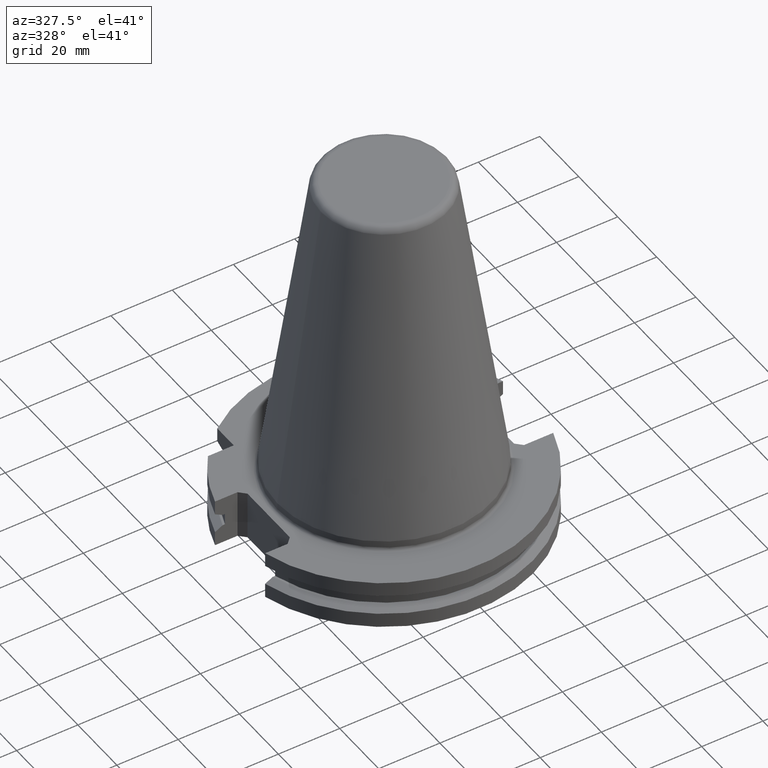
[diagram: clean part render]
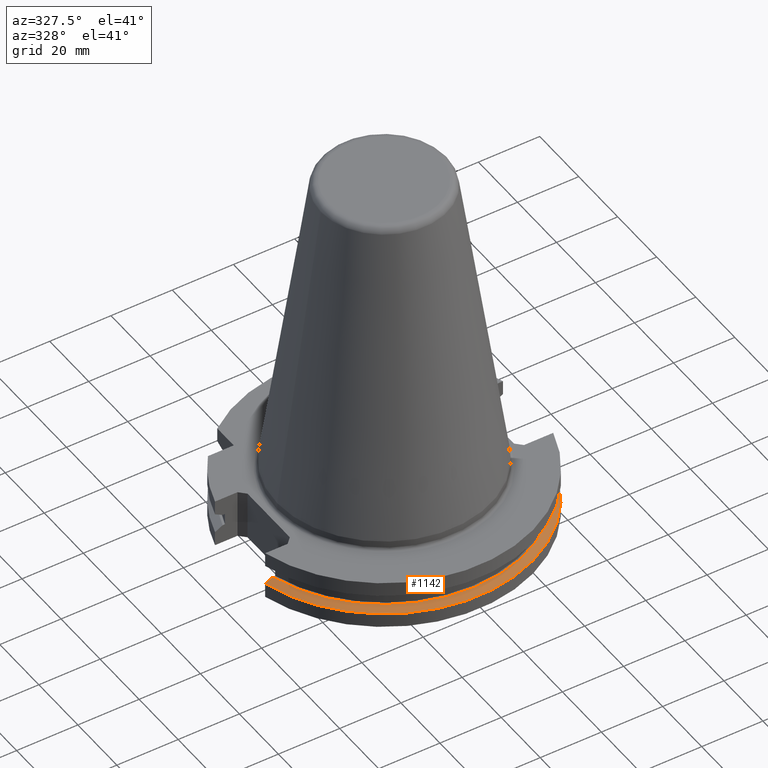
[diagram: same view with one face highlighted and labeled with its STEP entity id]
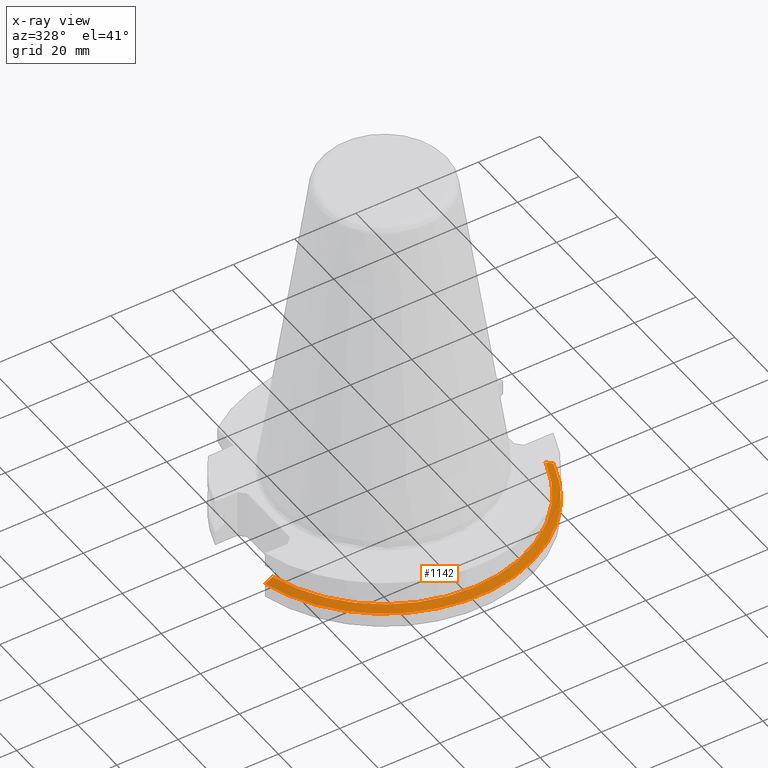
[diagram: x-ray of the same camera — body ghosted, the highlighted face saturated]
A machine part, auxiliary view. The second image highlights one B-rep face of the part: STEP entity #1142.
The next image is the same camera in x-ray: the body ghosted, the highlighted face saturated — about 0% of this face is hidden behind the body in this view.
In plain terms, the highlighted conical surface has half-angle 60 deg.
Its self-contained STEP definition (entity closure, byte-faithful):
#191=B_SPLINE_CURVE_WITH_KNOTS('',3,(#1695,#1696,#1697,#1698),
 .UNSPECIFIED.,.F.,.F.,(4,4),(0.0206077587212824,0.0234303424313697),
 .UNSPECIFIED.);
#192=B_SPLINE_CURVE_WITH_KNOTS('',3,(#1702,#1703,#1704,#1705),
 .UNSPECIFIED.,.F.,.F.,(4,4),(0.0157719633417457,0.0185944837533826),
 .UNSPECIFIED.);
#238=CONICAL_SURFACE('',#1230,48.75,1.0471975511966);
#259=ORIENTED_EDGE('',*,*,#590,.F.);
#260=ORIENTED_EDGE('',*,*,#591,.T.);
#261=ORIENTED_EDGE('',*,*,#592,.T.);
#262=ORIENTED_EDGE('',*,*,#593,.T.);
#590=EDGE_CURVE('',#757,#758,#874,.T.);
#591=EDGE_CURVE('',#757,#759,#191,.T.);
#592=EDGE_CURVE('',#759,#760,#875,.T.);
#593=EDGE_CURVE('',#760,#758,#192,.T.);
#757=VERTEX_POINT('',#1693);
#758=VERTEX_POINT('',#1694);
#759=VERTEX_POINT('',#1699);
#760=VERTEX_POINT('',#1701);
#874=CIRCLE('',#1231,48.75);
#875=CIRCLE('',#1232,46.3747448887957);
#933=EDGE_LOOP('',(#259,#260,#261,#262));
#1023=FACE_BOUND('',#933,.T.);
#1142=ADVANCED_FACE('',(#1023),#238,.T.);
#1230=AXIS2_PLACEMENT_3D('',#1691,#1364,#1365);
#1231=AXIS2_PLACEMENT_3D('',#1692,#1366,#1367);
#1232=AXIS2_PLACEMENT_3D('',#1700,#1368,#1369);
#1364=DIRECTION('',(0.,0.,-1.));
#1365=DIRECTION('',(-1.,0.,0.));
#1366=DIRECTION('',(0.,0.,-1.));
#1367=DIRECTION('',(-1.,0.,0.));
#1368=DIRECTION('',(0.,0.,-1.));
#1369=DIRECTION('',(-1.,0.,0.));
#1691=CARTESIAN_POINT('',(0.,0.,-14.3475952641916));
#1692=CARTESIAN_POINT('',(0.,0.,-14.3475952641916));
#1693=CARTESIAN_POINT('',(47.025950282796,-12.85,-14.3475952641916));
#1694=CARTESIAN_POINT('',(-47.025950282796,-12.85,-14.3475952641916));
#1695=CARTESIAN_POINT('',(47.025950282796,-12.85,-14.3475952641916));
#1696=CARTESIAN_POINT('',(46.2039634008729,-12.85,-13.889804296534));
#1697=CARTESIAN_POINT('',(45.3816279977281,-12.85,-13.4326509330609));
#1698=CARTESIAN_POINT('',(44.5588875927225,-12.85,-12.9762410863438));
#1699=CARTESIAN_POINT('',(44.5588875927225,-12.85,-12.9762410863438));
#1700=CARTESIAN_POINT('',(0.,0.,-12.9762410863438));
#1701=CARTESIAN_POINT('',(-44.5588875927225,-12.85,-12.9762410863438));
#1702=CARTESIAN_POINT('',(-44.5588875927225,-12.85,-12.9762410863438));
#1703=CARTESIAN_POINT('',(-45.3816314955783,-12.85,-13.4326528734704));
#1704=CARTESIAN_POINT('',(-46.2039699110152,-12.85,-13.8898079222419));
#1705=CARTESIAN_POINT('',(-47.025950282796,-12.85,-14.3475952641916));